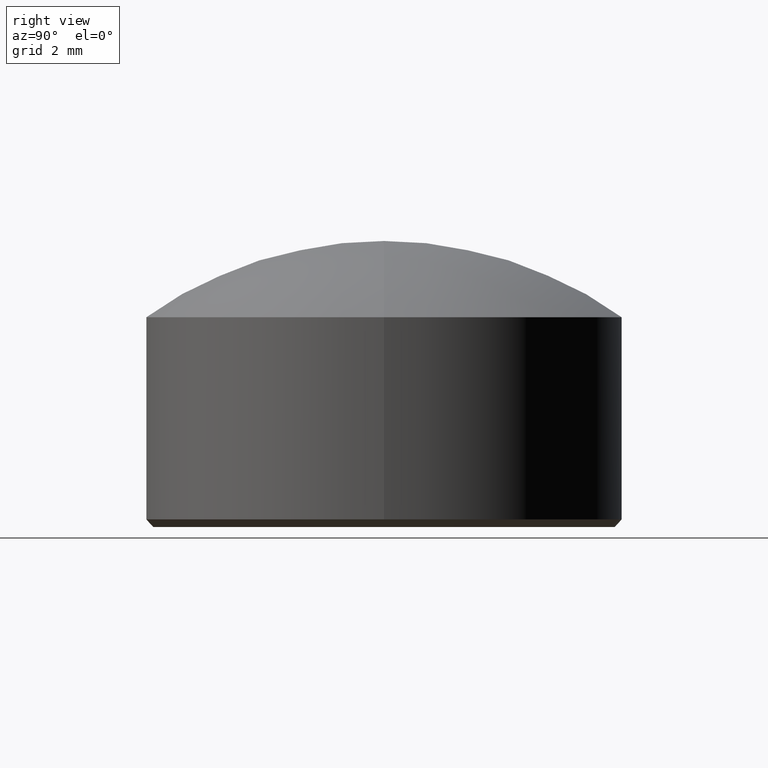
[diagram: clean part render]
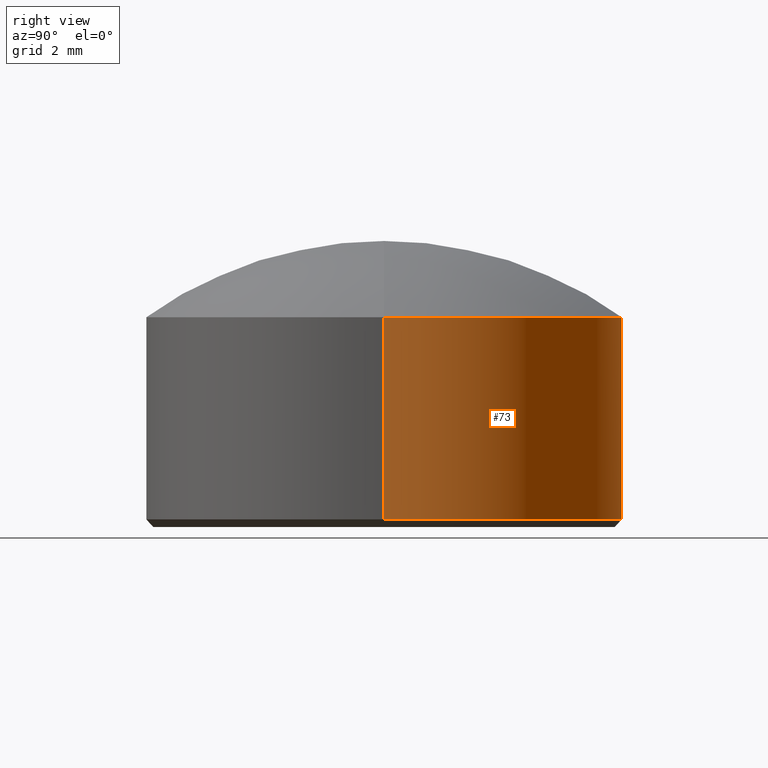
[diagram: same view with one face highlighted and labeled with its STEP entity id]
A machine part, right view. The second image highlights one B-rep face of the part: STEP entity #73.
In plain terms, the highlighted cylindrical surface (partial cylindrical patch) has radius 6.25 mm, axis along (-0, -0, -1).
Its self-contained STEP definition (entity closure, byte-faithful):
#4 = VECTOR ( 'NONE', #149, 1000.000000000000000 ) ;
#6 = ORIENTED_EDGE ( 'NONE', *, *, #203, .F. ) ;
#8 = LINE ( 'NONE', #141, #136 ) ;
#12 = ORIENTED_EDGE ( 'NONE', *, *, #146, .F. ) ;
#18 = AXIS2_PLACEMENT_3D ( 'NONE', #137, #188, #105 ) ;
#19 = AXIS2_PLACEMENT_3D ( 'NONE', #88, #128, #161 ) ;
#21 = VERTEX_POINT ( 'NONE', #95 ) ;
#30 = CIRCLE ( 'NONE', #132, 6.250000000000000000 ) ;
#34 = CARTESIAN_POINT ( 'NONE',  ( 6.250000000000000000, 7.654042494670957606E-16, 0.2000000000000005107 ) ) ;
#43 = EDGE_CURVE ( 'NONE', #145, #209, #163, .T. ) ;
#52 = CARTESIAN_POINT ( 'NONE',  ( 6.250000000000000000, 7.654042494670957606E-16, 5.500000000000000000 ) ) ;
#53 = EDGE_CURVE ( 'NONE', #209, #121, #30, .T. ) ;
#54 = CYLINDRICAL_SURFACE ( 'NONE', #18, 6.250000000000000000 ) ;
#73 = ADVANCED_FACE ( 'NONE', ( #202 ), #54, .T. ) ;
#84 = DIRECTION ( 'NONE',  ( -0.000000000000000000, -0.000000000000000000, 1.000000000000000000 ) ) ;
#88 = CARTESIAN_POINT ( 'NONE',  ( 0.000000000000000000, 0.000000000000000000, 5.500000000000000000 ) ) ;
#94 = CARTESIAN_POINT ( 'NONE',  ( 6.250000000000000000, 7.654042494670957606E-16, 5.500000000000000000 ) ) ;
#95 = CARTESIAN_POINT ( 'NONE',  ( -6.250000000000000000, 0.000000000000000000, 5.500000000000000000 ) ) ;
#105 = DIRECTION ( 'NONE',  ( -1.000000000000000000, 0.000000000000000000, 0.000000000000000000 ) ) ;
#106 = DIRECTION ( 'NONE',  ( -0.000000000000000000, -0.000000000000000000, -1.000000000000000000 ) ) ;
#110 = CARTESIAN_POINT ( 'NONE',  ( -6.250000000000000000, 0.000000000000000000, 0.2000000000000005107 ) ) ;
#113 = CARTESIAN_POINT ( 'NONE',  ( 0.000000000000000000, 0.000000000000000000, 0.2000000000000005107 ) ) ;
#121 = VERTEX_POINT ( 'NONE', #110 ) ;
#128 = DIRECTION ( 'NONE',  ( 0.000000000000000000, 0.000000000000000000, 1.000000000000000000 ) ) ;
#130 = DIRECTION ( 'NONE',  ( 1.000000000000000000, 0.000000000000000000, 0.000000000000000000 ) ) ;
#132 = AXIS2_PLACEMENT_3D ( 'NONE', #113, #84, #130 ) ;
#136 = VECTOR ( 'NONE', #106, 1000.000000000000000 ) ;
#137 = CARTESIAN_POINT ( 'NONE',  ( 0.000000000000000000, 0.000000000000000000, 5.500000000000000000 ) ) ;
#141 = CARTESIAN_POINT ( 'NONE',  ( -6.250000000000000000, 0.000000000000000000, 5.500000000000000000 ) ) ;
#145 = VERTEX_POINT ( 'NONE', #94 ) ;
#146 = EDGE_CURVE ( 'NONE', #145, #21, #151, .T. ) ;
#149 = DIRECTION ( 'NONE',  ( -0.000000000000000000, -0.000000000000000000, -1.000000000000000000 ) ) ;
#151 = CIRCLE ( 'NONE', #19, 6.250000000000000000 ) ;
#158 = ORIENTED_EDGE ( 'NONE', *, *, #43, .T. ) ;
#161 = DIRECTION ( 'NONE',  ( 1.000000000000000000, 0.000000000000000000, 0.000000000000000000 ) ) ;
#163 = LINE ( 'NONE', #52, #4 ) ;
#176 = ORIENTED_EDGE ( 'NONE', *, *, #53, .T. ) ;
#188 = DIRECTION ( 'NONE',  ( -0.000000000000000000, -0.000000000000000000, -1.000000000000000000 ) ) ;
#202 = FACE_OUTER_BOUND ( 'NONE', #215, .T. ) ;
#203 = EDGE_CURVE ( 'NONE', #21, #121, #8, .T. ) ;
#209 = VERTEX_POINT ( 'NONE', #34 ) ;
#215 = EDGE_LOOP ( 'NONE', ( #12, #158, #176, #6 ) ) ;